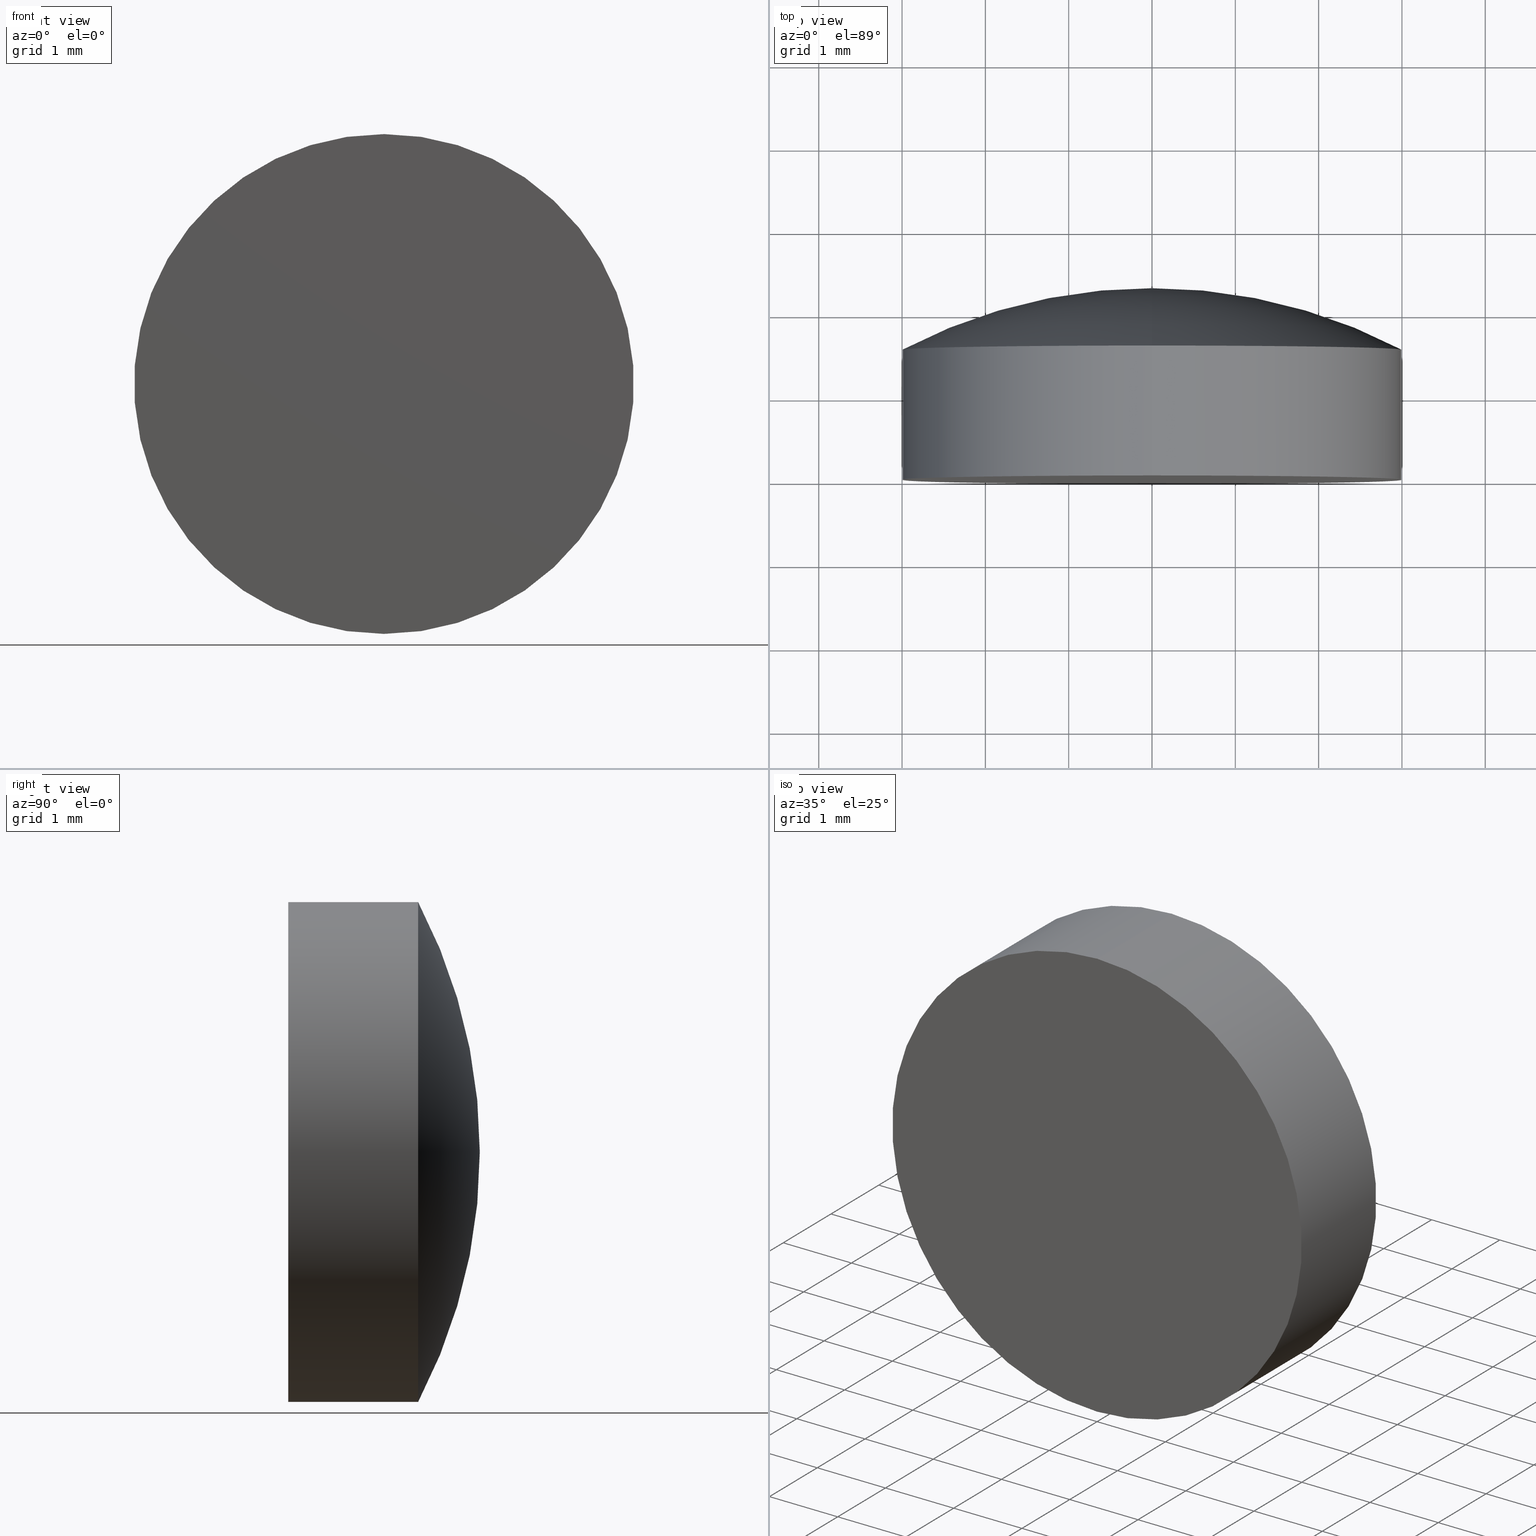
[diagram: canonical four-view strip — front | top / right | iso, engineering-drawing reading convention]
A machine part, canonical four-view strip (front | top / right | iso — engineering-drawing reading convention). The complete STEP part file that produces these views, byte-faithful:
ISO-10303-21;
HEADER;
FILE_DESCRIPTION (( 'STEP AP203' ),
    '1' );
FILE_NAME ('100584.STEP',
    '2024-05-10T01:27:57',
    ( '' ),
    ( '' ),
    'SwSTEP 2.0',
    'SolidWorks 2020',
    '' );
FILE_SCHEMA (( 'CONFIG_CONTROL_DESIGN' ));
ENDSEC;

DATA;
#1 = EDGE_CURVE ( 'NONE', #33, #77, #99, .T. ) ;
#2 = ORIENTED_EDGE ( 'NONE', *, *, #41, .F. ) ;
#3 = DIRECTION ( 'NONE',  ( 0.000000000000000000, 0.000000000000000000, 1.000000000000000000 ) ) ;
#4 = ORIENTED_EDGE ( 'NONE', *, *, #200, .F. ) ;
#5 = DIRECTION ( 'NONE',  ( -0.000000000000000000, 1.000000000000000000, -0.000000000000000000 ) ) ;
#6 = TOROIDAL_SURFACE ( 'NONE', #47, -0.002199907603223083541, 6.460000000000012399 ) ;
#7 = DIRECTION ( 'NONE',  ( 1.000000000000000000, 0.000000000000000000, 1.224646799147353207E-16 ) ) ;
#8 = AXIS2_PLACEMENT_3D ( 'NONE', #21, #68, #83 ) ;
#9 = DIRECTION ( 'NONE',  ( -1.000000000000000000, 0.000000000000000000, 0.000000000000000000 ) ) ;
#10 = DATE_AND_TIME ( #150, #60 ) ;
#11 = AXIS2_PLACEMENT_3D ( 'NONE', #174, #98, #19 ) ;
#12 = ADVANCED_FACE ( 'NONE', ( #116 ), #6, .T. ) ;
#13 = CIRCLE ( 'NONE', #109, 3.000000000000000000 ) ;
#14 = DATE_AND_TIME ( #90, #87 ) ;
#15 = ORIENTED_EDGE ( 'NONE', *, *, #46, .F. ) ;
#16 = ORIENTED_EDGE ( 'NONE', *, *, #184, .F. ) ;
#17 = ADVANCED_FACE ( 'NONE', ( #79 ), #101, .T. ) ;
#18 = APPROVAL_PERSON_ORGANIZATION ( #121, #100, #137 ) ;
#19 = DIRECTION ( 'NONE',  ( 0.000000000000000000, 0.000000000000000000, 1.000000000000000000 ) ) ;
#20 = CYLINDRICAL_SURFACE ( 'NONE', #125, 3.000000000000000000 ) ;
#21 = CARTESIAN_POINT ( 'NONE',  ( 0.000000000000000000, -1.836970198721029934E-16, 0.000000000000000000 ) ) ;
#22 = CARTESIAN_POINT ( 'NONE',  ( 0.000000000000000000, -4.159999625418464575, -0.002199907603223083541 ) ) ;
#23 = LOCAL_TIME ( 9, 27, 57.00000000000000000, #201 ) ;
#24 = APPLICATION_PROTOCOL_DEFINITION ( 'international standard', 'config_control_design', 1994, #173 ) ;
#25 = DIRECTION ( 'NONE',  ( -0.000000000000000000, 1.000000000000000000, -0.000000000000000000 ) ) ;
#26 = COORDINATED_UNIVERSAL_TIME_OFFSET ( 8, 0, .AHEAD. ) ;
#27 =( NAMED_UNIT ( * ) SI_UNIT ( $, .STERADIAN. ) SOLID_ANGLE_UNIT ( ) );
#28 = CC_DESIGN_PERSON_AND_ORGANIZATION_ASSIGNMENT ( #88, #152, ( #32 ) ) ;
#29 = CALENDAR_DATE ( 2024, 10, 5 ) ;
#30 = DATE_AND_TIME ( #92, #23 ) ;
#31 = PRODUCT ( '100584', '100584', '', ( #134 ) ) ;
#32 = PRODUCT_DEFINITION_FORMATION_WITH_SPECIFIED_SOURCE ( '�κ�', '', #31, .NOT_KNOWN. ) ;
#33 = VERTEX_POINT ( 'NONE', #80 ) ;
#34 = ADVANCED_FACE ( 'NONE', ( #160 ), #20, .T. ) ;
#35 = EDGE_LOOP ( 'NONE', ( #142, #113, #53, #172 ) ) ;
#36 = LOCAL_TIME ( 9, 27, 57.00000000000000000, #180 ) ;
#37 = ORIENTED_EDGE ( 'NONE', *, *, #46, .T. ) ;
#38 = DIRECTION ( 'NONE',  ( 0.000000000000000000, 0.000000000000000000, 1.000000000000000000 ) ) ;
#39 = TOROIDAL_SURFACE ( 'NONE', #114, -0.002199907603223083541, 6.460000000000012399 ) ;
#40 = DIRECTION ( 'NONE',  ( -0.000000000000000000, 1.000000000000000000, -0.000000000000000000 ) ) ;
#41 = EDGE_CURVE ( 'NONE', #77, #97, #105, .T. ) ;
#42 = PERSON_AND_ORGANIZATION ( #170, #117 ) ;
#43 = DIRECTION ( 'NONE',  ( 0.000000000000000000, 0.000000000000000000, 1.000000000000000000 ) ) ;
#44 = AXIS2_PLACEMENT_3D ( 'NONE', #108, #86, #70 ) ;
#45 = APPROVAL_STATUS ( 'not_yet_approved' ) ;
#46 = EDGE_CURVE ( 'NONE', #189, #187, #13, .T. ) ;
#47 = AXIS2_PLACEMENT_3D ( 'NONE', #144, #65, #188 ) ;
#48 =( LENGTH_UNIT ( ) NAMED_UNIT ( * ) SI_UNIT ( .MILLI., .METRE. ) );
#49 = AXIS2_PLACEMENT_3D ( 'NONE', #161, #7, #145 ) ;
#50 = APPROVAL_PERSON_ORGANIZATION ( #140, #123, #139 ) ;
#51 = EDGE_LOOP ( 'NONE', ( #2, #52, #158 ) ) ;
#52 = ORIENTED_EDGE ( 'NONE', *, *, #91, .T. ) ;
#53 = ORIENTED_EDGE ( 'NONE', *, *, #1, .F. ) ;
#54 = CARTESIAN_POINT ( 'NONE',  ( 0.000000000000000000, 2.299999999999999822, 0.000000000000000000 ) ) ;
#55 = DIRECTION ( 'NONE',  ( 0.000000000000000000, 0.000000000000000000, 1.000000000000000000 ) ) ;
#56 = APPROVAL_ROLE ( '' ) ;
#57 = ADVANCED_FACE ( 'NONE', ( #120 ), #132, .T. ) ;
#58 = DATE_TIME_ROLE ( 'creation_date' ) ;
#59 = DATE_AND_TIME ( #29, #128 ) ;
#60 = LOCAL_TIME ( 9, 27, 57.00000000000000000, #26 ) ;
#61 = APPROVAL_PERSON_ORGANIZATION ( #73, #111, #56 ) ;
#62 = ORIENTED_EDGE ( 'NONE', *, *, #151, .F. ) ;
#63 = MANIFOLD_SOLID_BREP ( '��ת1', #76 ) ;
#64 = DIRECTION ( 'NONE',  ( -0.000000000000000000, 1.000000000000000000, -0.000000000000000000 ) ) ;
#65 = DIRECTION ( 'NONE',  ( -0.000000000000000000, 1.000000000000000000, -0.000000000000000000 ) ) ;
#66 = EDGE_LOOP ( 'NONE', ( #157, #130, #62 ) ) ;
#67 = DIRECTION ( 'NONE',  ( 0.000000000000000000, 0.000000000000000000, 1.000000000000000000 ) ) ;
#68 = DIRECTION ( 'NONE',  ( 0.000000000000000000, -1.000000000000000000, 0.000000000000000000 ) ) ;
#69 = CIRCLE ( 'NONE', #95, 3.000000000000000000 ) ;
#70 = DIRECTION ( 'NONE',  ( 1.000000000000000000, 0.000000000000000000, 0.000000000000000000 ) ) ;
#71 = CARTESIAN_POINT ( 'NONE',  ( 0.000000000000000000, -4.336808689942017736E-16, 3.000000000000000000 ) ) ;
#72 = EDGE_CURVE ( 'NONE', #187, #33, #164, .T. ) ;
#73 = PERSON_AND_ORGANIZATION ( #170, #117 ) ;
#74 = UNCERTAINTY_MEASURE_WITH_UNIT (LENGTH_MEASURE( 1.000000000000000082E-05 ), #48, 'distance_accuracy_value', 'NONE');
#75 = DATE_TIME_ROLE ( 'classification_date' ) ;
#76 = CLOSED_SHELL ( 'NONE', ( #17, #115, #12, #57, #34 ) ) ;
#77 = VERTEX_POINT ( 'NONE', #179 ) ;
#78 = ORIENTED_EDGE ( 'NONE', *, *, #72, .T. ) ;
#79 = FACE_OUTER_BOUND ( 'NONE', #35, .T. ) ;
#80 = CARTESIAN_POINT ( 'NONE',  ( 0.000000000000000000, 1.559999999999999831, 2.999999999999998668 ) ) ;
#81 = CARTESIAN_POINT ( 'NONE',  ( 0.000000000000000000, 2.299999999999999822, 0.000000000000000000 ) ) ;
#82 = PRODUCT_RELATED_PRODUCT_CATEGORY ( 'detail', '', ( #31 ) ) ;
#83 = DIRECTION ( 'NONE',  ( 0.000000000000000000, -0.000000000000000000, -1.000000000000000000 ) ) ;
#84 = CARTESIAN_POINT ( 'NONE',  ( 0.000000000000000000, 1.559999999999999609, 0.000000000000000000 ) ) ;
#85 = DIRECTION ( 'NONE',  ( 0.000000000000000000, 0.000000000000000000, 1.000000000000000000 ) ) ;
#86 = DIRECTION ( 'NONE',  ( 0.000000000000000000, 0.000000000000000000, 1.000000000000000000 ) ) ;
#87 = LOCAL_TIME ( 9, 27, 57.00000000000000000, #89 ) ;
#88 = PERSON_AND_ORGANIZATION ( #170, #117 ) ;
#89 = COORDINATED_UNIVERSAL_TIME_OFFSET ( 8, 0, .AHEAD. ) ;
#90 = CALENDAR_DATE ( 2024, 10, 5 ) ;
#91 = EDGE_CURVE ( 'NONE', #77, #33, #69, .T. ) ;
#92 = CALENDAR_DATE ( 2024, 10, 5 ) ;
#93 = EDGE_LOOP ( 'NONE', ( #4, #37, #78, #112 ) ) ;
#94 = CIRCLE ( 'NONE', #126, 3.000000000000000000 ) ;
#95 = AXIS2_PLACEMENT_3D ( 'NONE', #84, #194, #38 ) ;
#96 = EDGE_LOOP ( 'NONE', ( #16, #15 ) ) ;
#97 = VERTEX_POINT ( 'NONE', #54 ) ;
#98 = DIRECTION ( 'NONE',  ( -0.000000000000000000, 1.000000000000000000, -0.000000000000000000 ) ) ;
#99 = CIRCLE ( 'NONE', #191, 3.000000000000000000 ) ;
#100 = APPROVAL ( #45, 'δָ��' ) ;
#101 = CYLINDRICAL_SURFACE ( 'NONE', #11, 3.000000000000000000 ) ;
#102 = DIRECTION ( 'NONE',  ( 0.000000000000000000, 0.000000000000000000, 1.000000000000000000 ) ) ;
#103 = APPLICATION_PROTOCOL_DEFINITION ( 'international standard', 'config_control_design', 1994, #136 ) ;
#104 = DIRECTION ( 'NONE',  ( -0.000000000000000000, 1.000000000000000000, -0.000000000000000000 ) ) ;
#105 = CIRCLE ( 'NONE', #49, 6.460000000000012399 ) ;
#106 = APPROVAL_STATUS ( 'not_yet_approved' ) ;
#107 = COORDINATED_UNIVERSAL_TIME_OFFSET ( 8, 0, .AHEAD. ) ;
#108 = CARTESIAN_POINT ( 'NONE',  ( 0.000000000000000000, 0.000000000000000000, 0.000000000000000000 ) ) ;
#109 = AXIS2_PLACEMENT_3D ( 'NONE', #176, #118, #55 ) ;
#110 = CC_DESIGN_PERSON_AND_ORGANIZATION_ASSIGNMENT ( #42, #168, ( #31 ) ) ;
#111 = APPROVAL ( #106, 'δָ��' ) ;
#112 = ORIENTED_EDGE ( 'NONE', *, *, #91, .F. ) ;
#113 = ORIENTED_EDGE ( 'NONE', *, *, #200, .T. ) ;
#114 = AXIS2_PLACEMENT_3D ( 'NONE', #177, #40, #102 ) ;
#115 = ADVANCED_FACE ( 'NONE', ( #162 ), #39, .T. ) ;
#116 = FACE_OUTER_BOUND ( 'NONE', #51, .T. ) ;
#117 = ORGANIZATION ( 'δָ��', 'δָ��', '' ) ;
#118 = DIRECTION ( 'NONE',  ( -0.000000000000000000, 1.000000000000000000, -0.000000000000000000 ) ) ;
#119 = CARTESIAN_POINT ( 'NONE',  ( 3.673940397442059868E-16, -4.336808689942017736E-16, -3.000000000000000000 ) ) ;
#120 = FACE_OUTER_BOUND ( 'NONE', #96, .T. ) ;
#121 = PERSON_AND_ORGANIZATION ( #170, #117 ) ;
#122 = APPROVAL_DATE_TIME ( #59, #100 ) ;
#123 = APPROVAL ( #171, 'δָ��' ) ;
#124 = SECURITY_CLASSIFICATION_LEVEL ( 'unclassified' ) ;
#125 = AXIS2_PLACEMENT_3D ( 'NONE', #81, #5, #67 ) ;
#126 = AXIS2_PLACEMENT_3D ( 'NONE', #147, #25, #85 ) ;
#127 = PRODUCT_DEFINITION ( 'δ֪', '', #32, #169 ) ;
#128 = LOCAL_TIME ( 9, 27, 57.00000000000000000, #107 ) ;
#129 = CC_DESIGN_PERSON_AND_ORGANIZATION_ASSIGNMENT ( #138, #198, ( #32 ) ) ;
#130 = ORIENTED_EDGE ( 'NONE', *, *, #41, .T. ) ;
#131 = CARTESIAN_POINT ( 'NONE',  ( 0.000000000000000000, 2.299999999999999822, 3.000000000000000000 ) ) ;
#132 = PLANE ( 'NONE',  #8 ) ;
#133 = PERSON_AND_ORGANIZATION ( #170, #117 ) ;
#134 = MECHANICAL_CONTEXT ( 'NONE', #136, 'mechanical' ) ;
#135 =( GEOMETRIC_REPRESENTATION_CONTEXT ( 3 ) GLOBAL_UNCERTAINTY_ASSIGNED_CONTEXT ( ( #74 ) ) GLOBAL_UNIT_ASSIGNED_CONTEXT ( ( #48, #197, #27 ) ) REPRESENTATION_CONTEXT ( 'NONE', 'WORKASPACE' ) );
#136 = APPLICATION_CONTEXT ( 'configuration controlled 3d designs of mechanical parts and assemblies' ) ;
#137 = APPROVAL_ROLE ( '' ) ;
#138 = PERSON_AND_ORGANIZATION ( #170, #117 ) ;
#139 = APPROVAL_ROLE ( '' ) ;
#140 = PERSON_AND_ORGANIZATION ( #170, #117 ) ;
#141 = ADVANCED_BREP_SHAPE_REPRESENTATION ( '100584', ( #63, #44 ), #135 ) ;
#142 = ORIENTED_EDGE ( 'NONE', *, *, #184, .T. ) ;
#143 = CARTESIAN_POINT ( 'NONE',  ( 0.000000000000000000, 1.559999999999999609, 0.000000000000000000 ) ) ;
#144 = CARTESIAN_POINT ( 'NONE',  ( 0.000000000000000000, -4.159999625418464575, 0.000000000000000000 ) ) ;
#145 = DIRECTION ( 'NONE',  ( 1.224646799147353207E-16, 0.000000000000000000, -1.000000000000000000 ) ) ;
#146 = CC_DESIGN_APPROVAL ( #123, ( #167 ) ) ;
#147 = CARTESIAN_POINT ( 'NONE',  ( 0.000000000000000000, -4.336808689942017736E-16, 0.000000000000000000 ) ) ;
#148 = APPROVAL_DATE_TIME ( #165, #111 ) ;
#149 = LINE ( 'NONE', #195, #159 ) ;
#150 = CALENDAR_DATE ( 2024, 10, 5 ) ;
#151 = EDGE_CURVE ( 'NONE', #33, #97, #193, .T. ) ;
#152 = PERSON_AND_ORGANIZATION_ROLE ( 'creator' ) ;
#153 = APPROVAL_DATE_TIME ( #30, #123 ) ;
#154 = PERSON_AND_ORGANIZATION ( #170, #117 ) ;
#155 = CC_DESIGN_PERSON_AND_ORGANIZATION_ASSIGNMENT ( #154, #199, ( #167 ) ) ;
#156 = VECTOR ( 'NONE', #104, 1000.000000000000000 ) ;
#157 = ORIENTED_EDGE ( 'NONE', *, *, #1, .T. ) ;
#158 = ORIENTED_EDGE ( 'NONE', *, *, #151, .T. ) ;
#159 = VECTOR ( 'NONE', #178, 1000.000000000000000 ) ;
#160 = FACE_OUTER_BOUND ( 'NONE', #93, .T. ) ;
#161 = CARTESIAN_POINT ( 'NONE',  ( -2.694109804707074809E-19, -4.159999625418464575, 0.002199907603223083541 ) ) ;
#162 = FACE_OUTER_BOUND ( 'NONE', #66, .T. ) ;
#163 = CC_DESIGN_SECURITY_CLASSIFICATION ( #167, ( #32 ) ) ;
#164 = LINE ( 'NONE', #131, #156 ) ;
#165 = DATE_AND_TIME ( #181, #36 ) ;
#166 = CC_DESIGN_DATE_AND_TIME_ASSIGNMENT ( #14, #75, ( #167 ) ) ;
#167 = SECURITY_CLASSIFICATION ( '', '', #124 ) ;
#168 = PERSON_AND_ORGANIZATION_ROLE ( 'design_owner' ) ;
#169 = DESIGN_CONTEXT ( 'detailed design', #173, 'design' ) ;
#170 = PERSON ( 'δָ��', 'δָ��', 'δָ��', ('δָ��'), ('δָ��'), ('δָ��') ) ;
#171 = APPROVAL_STATUS ( 'not_yet_approved' ) ;
#172 = ORIENTED_EDGE ( 'NONE', *, *, #72, .F. ) ;
#173 = APPLICATION_CONTEXT ( 'configuration controlled 3d designs of mechanical parts and assemblies' ) ;
#174 = CARTESIAN_POINT ( 'NONE',  ( 0.000000000000000000, 2.299999999999999822, 0.000000000000000000 ) ) ;
#175 = CC_DESIGN_APPROVAL ( #100, ( #32 ) ) ;
#176 = CARTESIAN_POINT ( 'NONE',  ( 0.000000000000000000, -4.336808689942017736E-16, 0.000000000000000000 ) ) ;
#177 = CARTESIAN_POINT ( 'NONE',  ( 0.000000000000000000, -4.159999625418464575, 0.000000000000000000 ) ) ;
#178 = DIRECTION ( 'NONE',  ( -0.000000000000000000, 1.000000000000000000, -0.000000000000000000 ) ) ;
#179 = CARTESIAN_POINT ( 'NONE',  ( 3.673940397442058389E-16, 1.559999999999999831, -2.999999999999998668 ) ) ;
#180 = COORDINATED_UNIVERSAL_TIME_OFFSET ( 8, 0, .AHEAD. ) ;
#181 = CALENDAR_DATE ( 2024, 10, 5 ) ;
#182 = AXIS2_PLACEMENT_3D ( 'NONE', #22, #9, #43 ) ;
#183 = CC_DESIGN_PERSON_AND_ORGANIZATION_ASSIGNMENT ( #133, #196, ( #127 ) ) ;
#184 = EDGE_CURVE ( 'NONE', #187, #189, #94, .T. ) ;
#185 = PRODUCT_DEFINITION_SHAPE ( 'NONE', 'NONE',  #127 ) ;
#186 = SHAPE_DEFINITION_REPRESENTATION ( #185, #141 ) ;
#187 = VERTEX_POINT ( 'NONE', #71 ) ;
#188 = DIRECTION ( 'NONE',  ( 0.000000000000000000, 0.000000000000000000, 1.000000000000000000 ) ) ;
#189 = VERTEX_POINT ( 'NONE', #119 ) ;
#190 = CC_DESIGN_DATE_AND_TIME_ASSIGNMENT ( #10, #58, ( #127 ) ) ;
#191 = AXIS2_PLACEMENT_3D ( 'NONE', #143, #64, #3 ) ;
#192 = CC_DESIGN_APPROVAL ( #111, ( #127 ) ) ;
#193 = CIRCLE ( 'NONE', #182, 6.460000000000012399 ) ;
#194 = DIRECTION ( 'NONE',  ( -0.000000000000000000, 1.000000000000000000, -0.000000000000000000 ) ) ;
#195 = CARTESIAN_POINT ( 'NONE',  ( 3.673940397442059868E-16, 2.299999999999999822, -3.000000000000000000 ) ) ;
#196 = PERSON_AND_ORGANIZATION_ROLE ( 'creator' ) ;
#197 =( NAMED_UNIT ( * ) PLANE_ANGLE_UNIT ( ) SI_UNIT ( $, .RADIAN. ) );
#198 = PERSON_AND_ORGANIZATION_ROLE ( 'design_supplier' ) ;
#199 = PERSON_AND_ORGANIZATION_ROLE ( 'classification_officer' ) ;
#200 = EDGE_CURVE ( 'NONE', #189, #77, #149, .T. ) ;
#201 = COORDINATED_UNIVERSAL_TIME_OFFSET ( 8, 0, .AHEAD. ) ;
ENDSEC;
END-ISO-10303-21;
